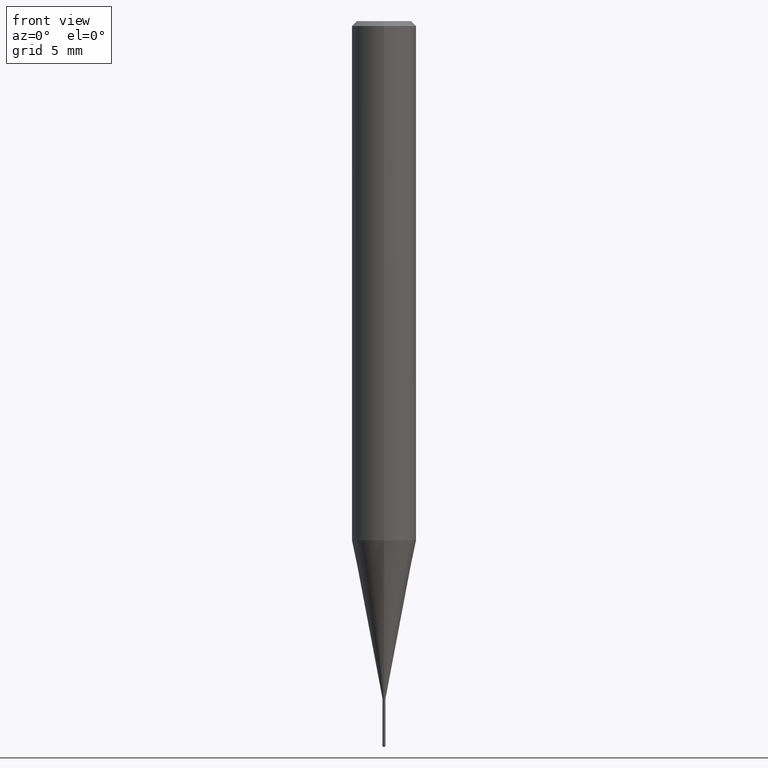
[diagram: clean part render]
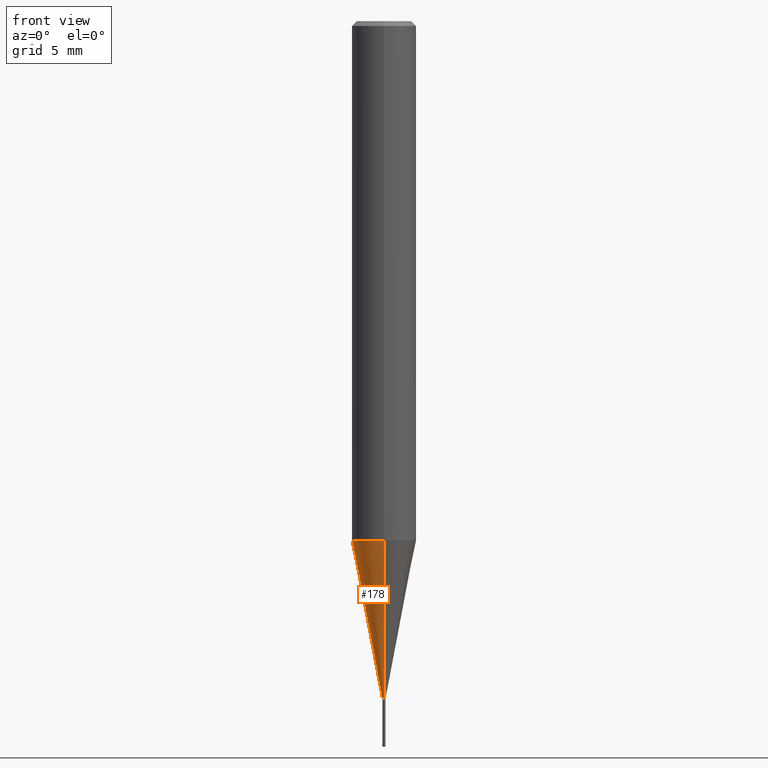
[diagram: same view with one face highlighted and labeled with its STEP entity id]
A machine part, front view. The second image highlights one B-rep face of the part: STEP entity #178.
In plain terms, the highlighted conical surface has half-angle 11 deg.
Its self-contained STEP definition (entity closure, byte-faithful):
#104=EDGE_CURVE('',#194,#188,#247,.T.);
#116=VERTEX_POINT('',#263);
#178=ADVANCED_FACE('',(#333),#334,.T.);
#180=VERTEX_POINT('',#336);
#188=VERTEX_POINT('',#345);
#194=VERTEX_POINT('',#351);
#198=EDGE_CURVE('',#116,#180,#356,.T.);
#204=EDGE_CURVE('',#188,#116,#362,.T.);
#214=EDGE_CURVE('',#194,#180,#372,.T.);
#247=LINE('',#399,#400);
#263=CARTESIAN_POINT('',(0.0,1.99995,-32.2));
#333=FACE_OUTER_BOUND('',#509,.T.);
#334=CONICAL_SURFACE('',#510,1.04745,0.191993392580482);
#336=CARTESIAN_POINT('',(0.0,0.09495,-42.0));
#345=CARTESIAN_POINT('',(2.44915147732706E-016,-1.99995,-32.2));
#351=CARTESIAN_POINT('',(1.16276373295435E-017,-0.09495,-42.0));
#356=LINE('',#535,#536);
#362=CIRCLE('',#544,1.99995);
#372=CIRCLE('',#557,0.09495);
#399=CARTESIAN_POINT('',(1.28271392531125E-016,-1.04745,-37.1));
#400=VECTOR('',#582,1.0);
#509=EDGE_LOOP('',(#704,#705,#706,#707));
#510=AXIS2_PLACEMENT_3D('',#708,#709,#710);
#535=CARTESIAN_POINT('',(-1.28271392531125E-016,1.04745,-37.1));
#536=VECTOR('',#729,1.0);
#544=AXIS2_PLACEMENT_3D('',#733,#734,#735);
#557=AXIS2_PLACEMENT_3D('',#737,#738,#739);
#582=DIRECTION('',(2.33674533048507E-017,-0.190816038410332,0.981625814394358));
#704=ORIENTED_EDGE('',*,*,#198,.T.);
#705=ORIENTED_EDGE('',*,*,#214,.F.);
#706=ORIENTED_EDGE('',*,*,#104,.T.);
#707=ORIENTED_EDGE('',*,*,#204,.T.);
#708=CARTESIAN_POINT('',(0.0,0.0,-37.1));
#709=DIRECTION('',(-0.0,-0.0,1.0));
#710=DIRECTION('',(0.0,1.0,0.0));
#729=DIRECTION('',(2.33674533048507E-017,-0.190816038410332,-0.981625814394358));
#733=CARTESIAN_POINT('',(0.0,0.0,-32.2));
#734=DIRECTION('',(0.0,0.0,-1.0));
#735=DIRECTION('',(0.0,1.0,0.0));
#737=CARTESIAN_POINT('',(0.0,0.0,-42.0));
#738=DIRECTION('',(0.0,0.0,-1.0));
#739=DIRECTION('',(0.0,1.0,0.0));